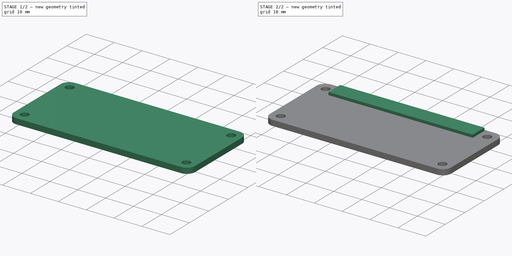
[diagram: build sequence overview — one tinted view per stage of 2, left to right]
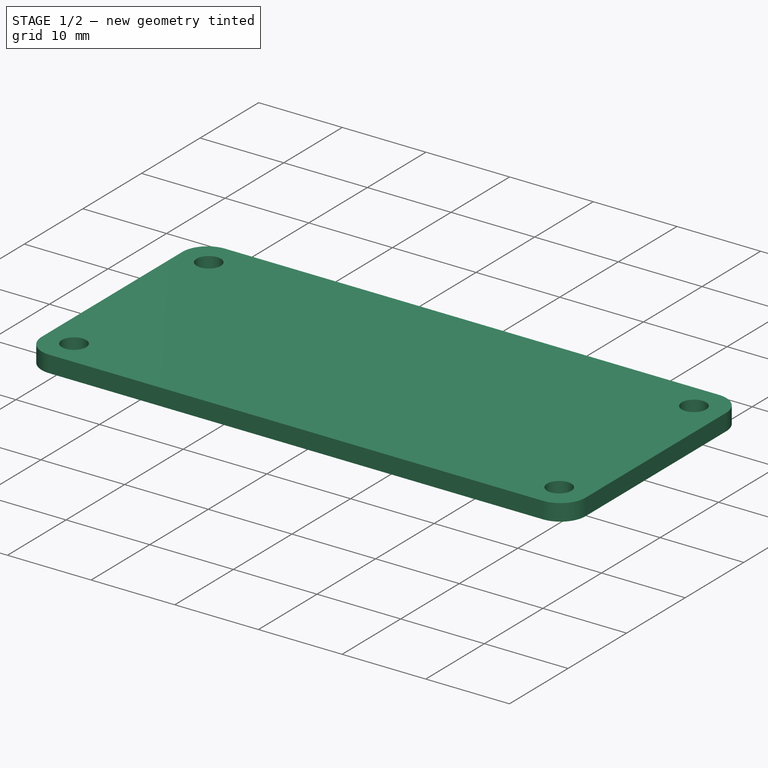
[diagram: stage 1 of 2 — iso view after this stage's code; geometry added in this stage tinted green]
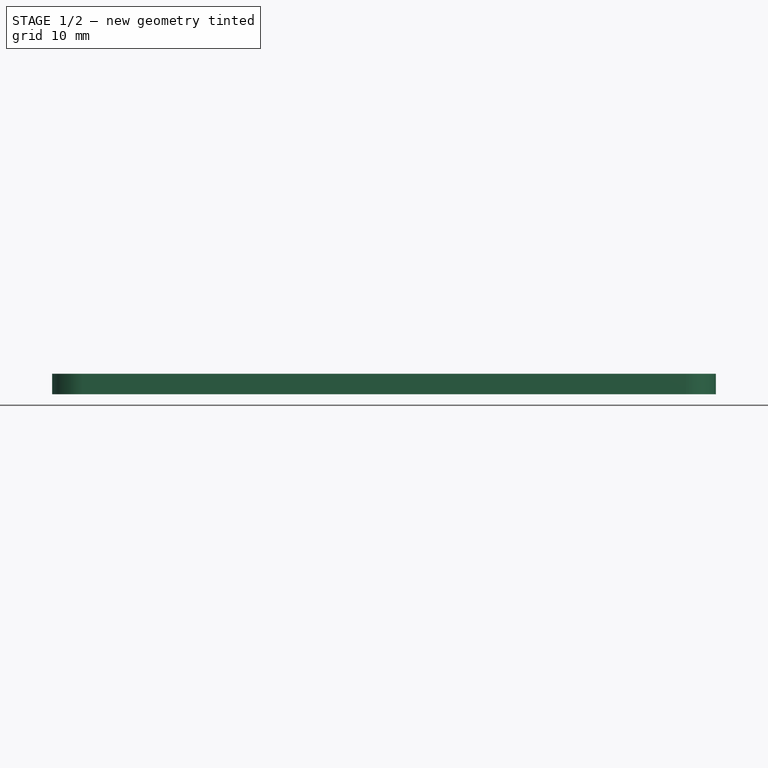
[diagram: stage 1 of 2 — front view after this stage's code; geometry added in this stage tinted green]
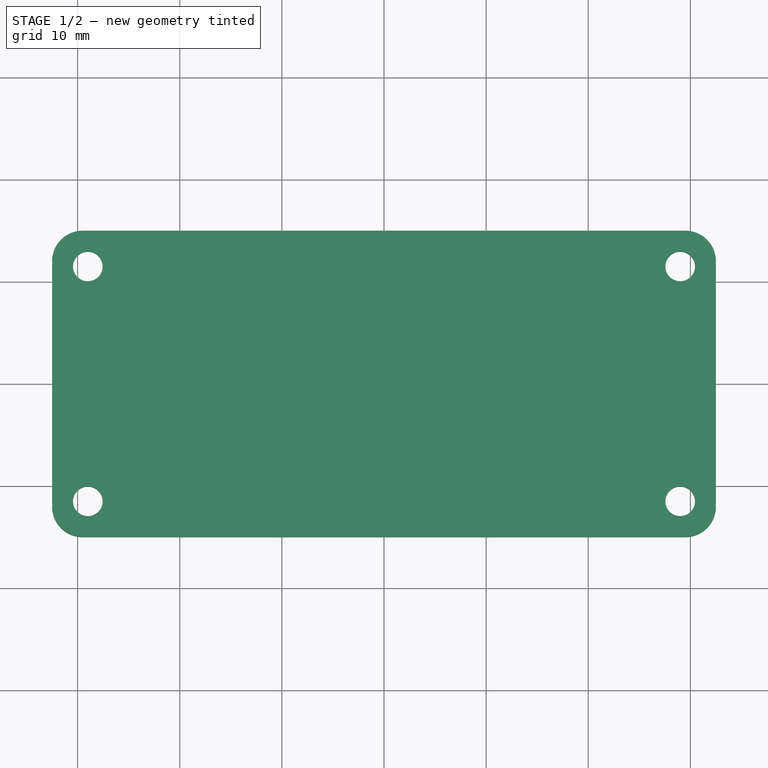
[diagram: stage 1 of 2 — top view after this stage's code; geometry added in this stage tinted green]
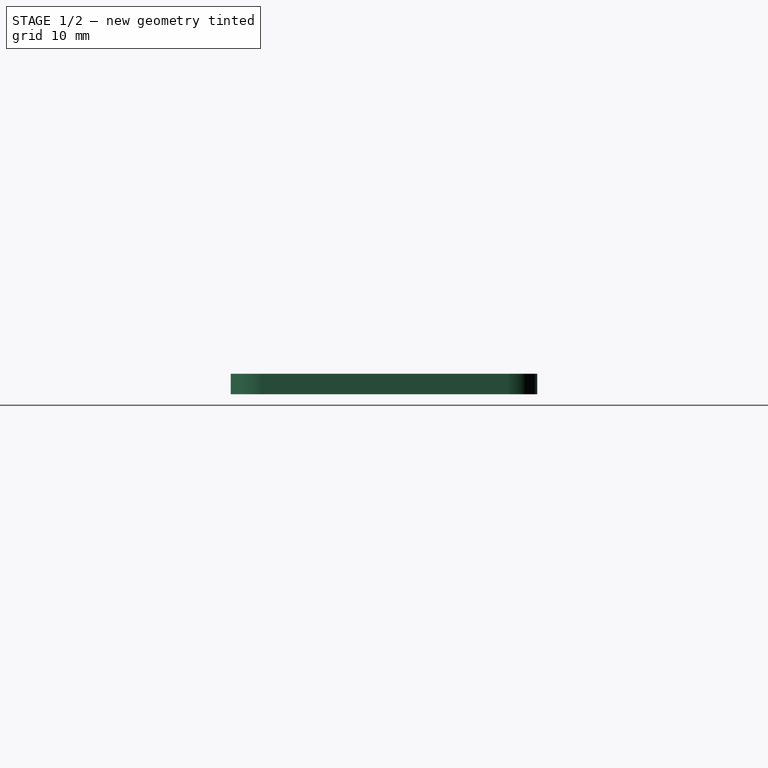
[diagram: stage 1 of 2 — right view after this stage's code; geometry added in this stage tinted green]
FCSTD DOCUMENT  (FreeCAD 0.17R13387 (Git))
Label: raspberry_zero_w_border
License: All rights reserved
LicenseURL: http://en.wikipedia.org/wiki/All_rights_reserved
objects: Sketcher::SketchObject×2, PartDesign::Pad×2, PartDesign::Body×1
note: 7 computed .brp shape members not serialized (recipe doc carries the construction recipe); baked Part::Feature solids carry a one-line shape summary decoded from their .brp

FEATURE [Sketcher::SketchObject] Sketch
  MapMode = 5
  Support = -> [XY_Plane]
  sketch-geometry (15):
    g0: LineSegment StartX=-29.5 StartY=15 StartZ=0 EndX=29.5 EndY=15 EndZ=0
    g1: LineSegment StartX=32.5 StartY=12 StartZ=0 EndX=32.5 EndY=-12 EndZ=0
    g2: LineSegment StartX=29.5 StartY=-15 StartZ=0 EndX=-29.5 EndY=-15 EndZ=0
    g3: LineSegment StartX=-32.5 StartY=-12 StartZ=0 EndX=-32.5 EndY=12 EndZ=0
    g4: ArcOfCircle CenterX=-29.5 CenterY=12 CenterZ=0 NormalX=0 NormalY=0 NormalZ=1 AngleXU=0 Radius=3 StartAngle=1.5708 EndAngle=3.14159
    g5: ArcOfCircle CenterX=29.5 CenterY=12 CenterZ=0 NormalX=0 NormalY=0 NormalZ=1 AngleXU=0 Radius=3 StartAngle=0 EndAngle=1.5708
    g6: ArcOfCircle CenterX=29.5 CenterY=-12 CenterZ=0 NormalX=0 NormalY=0 NormalZ=1 AngleXU=0 Radius=3 StartAngle=4.71239 EndAngle=6.28319
    g7: ArcOfCircle CenterX=-29.5 CenterY=-12 CenterZ=0 NormalX=0 NormalY=0 NormalZ=1 AngleXU=0 Radius=3 StartAngle=3.14159 EndAngle=4.71239
    g8: Circle CenterX=-29 CenterY=11.5 CenterZ=0 NormalX=0 NormalY=0 NormalZ=1 AngleXU=0 Radius=1.45
    g9: Circle CenterX=29 CenterY=11.5 CenterZ=0 NormalX=0 NormalY=0 NormalZ=1 AngleXU=0 Radius=1.45
    g10: Circle CenterX=-29 CenterY=-11.5 CenterZ=0 NormalX=0 NormalY=0 NormalZ=1 AngleXU=0 Radius=1.45
    g11: Circle CenterX=29 CenterY=-11.5 CenterZ=0 NormalX=0 NormalY=0 NormalZ=1 AngleXU=0 Radius=1.45
    g12: LineSegment [constr] StartX=-29 StartY=11.5 StartZ=0 EndX=-29 EndY=-11.5 EndZ=0
    g13: LineSegment [constr] StartX=-29 StartY=11.5 StartZ=0 EndX=29 EndY=11.5 EndZ=0
    g14: LineSegment [constr] StartX=29 StartY=11.5 StartZ=0 EndX=29 EndY=-11.5 EndZ=0
  constraints (36):
    c: Horizontal(g0)
    c: Vertical(g1)
    c: Vertical(g3)
    c: Tangent(g0,g4) = 1.5708
    c: Tangent(g3,g4) = 1.5708
    c: Tangent(g0,g5) = 1.5708
    c: Tangent(g1,g5) = 1.5708
    c: Tangent(g1,g6) = 1.5708
    c: Tangent(g2,g6) = 1.5708
    c: Tangent(g2,g7) = 1.5708
    c: Tangent(g3,g7) = 1.5708
    c: Radius(g7) = 3
    c: Equal(g7,g5)
    c: Equal(g7,g6)
    c: Equal(g4,g7)
    c: DistanceX(g3,g1) = 65
    c: DistanceY(g2,g0) = 30
    c: Equal(g8,g10)
    c: Equal(g10,g9)
    c: Equal(g9,g11)
    c: Radius(g8) = 1.45
    c: Symmetric(g8,g9,g-2)
    c: Symmetric(g9,g11,g-1)
    c: DistanceY(g10,g8) = 23
    c: DistanceY(g8,g0) = 3.5
    c: Coincident(g12,g8)
    c: Coincident(g12,g10)
    c: Vertical(g12)
    c: Symmetric(g0,g2,g-1)
    c: DistanceX(g3,g8) = 3.5
    c: Coincident(g13,g8)
    c: Coincident(g13,g9)
    c: DistanceX(g13,g13) = 58
    c: Coincident(g14,g9)
    c: Coincident(g14,g11)
    c: Equal(g14,g12)
FEATURE [PartDesign::Pad] Pad
  Length = 2
  Length2 = 100
  Profile = -> Sketch
  Type = 0
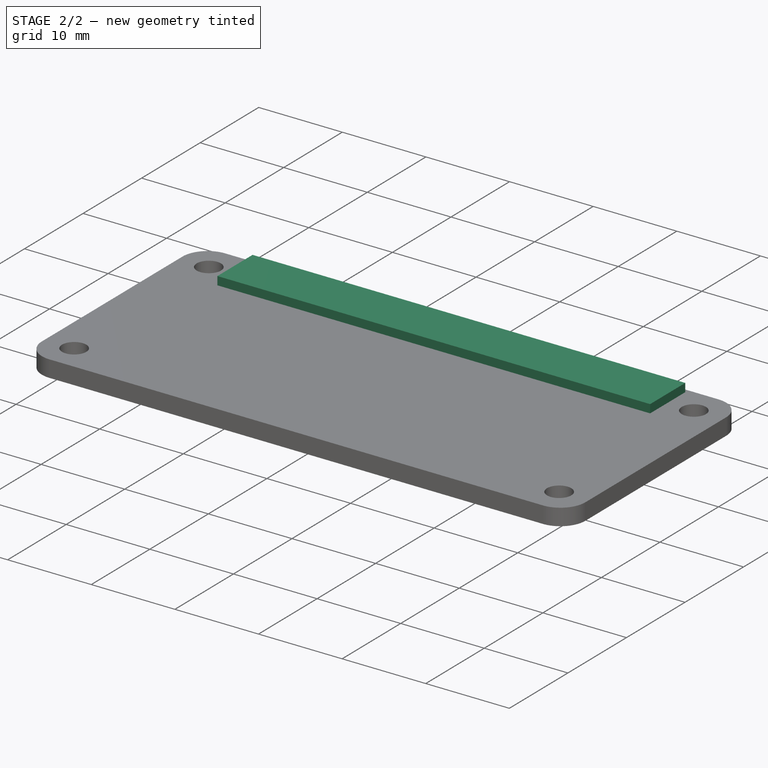
[diagram: stage 2 of 2 — iso view after this stage's code; geometry added in this stage tinted green]
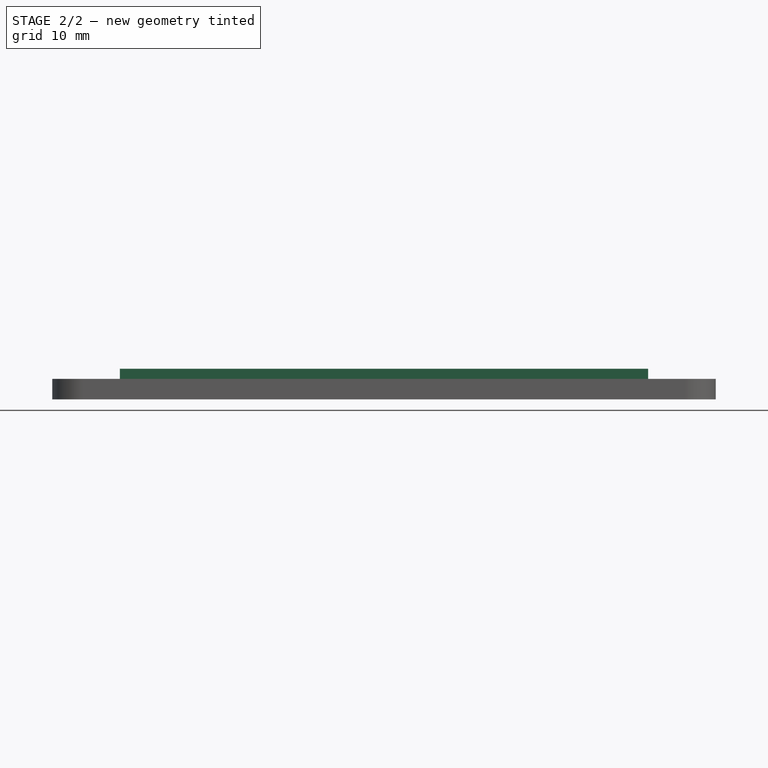
[diagram: stage 2 of 2 — front view after this stage's code; geometry added in this stage tinted green]
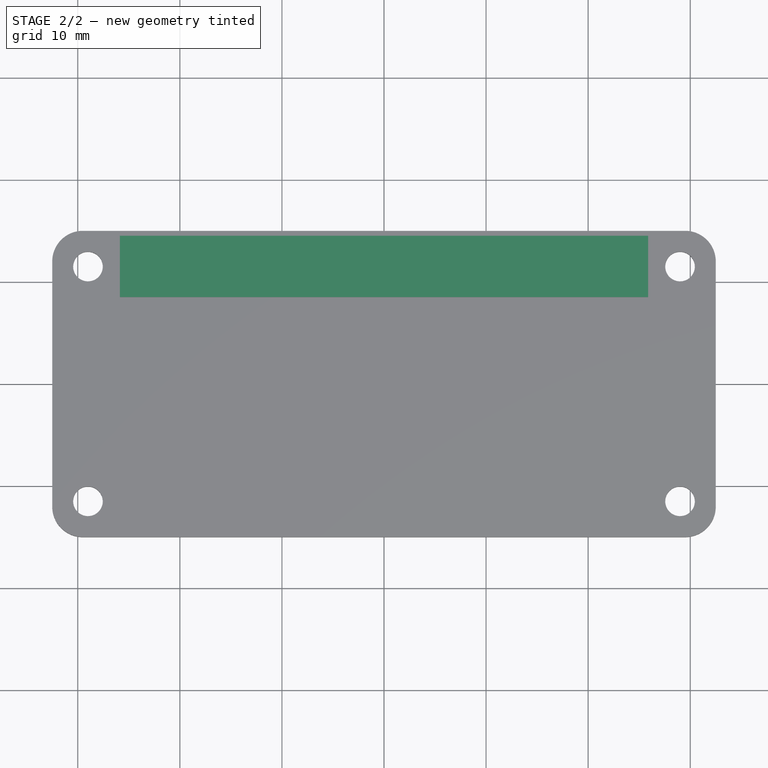
[diagram: stage 2 of 2 — top view after this stage's code; geometry added in this stage tinted green]
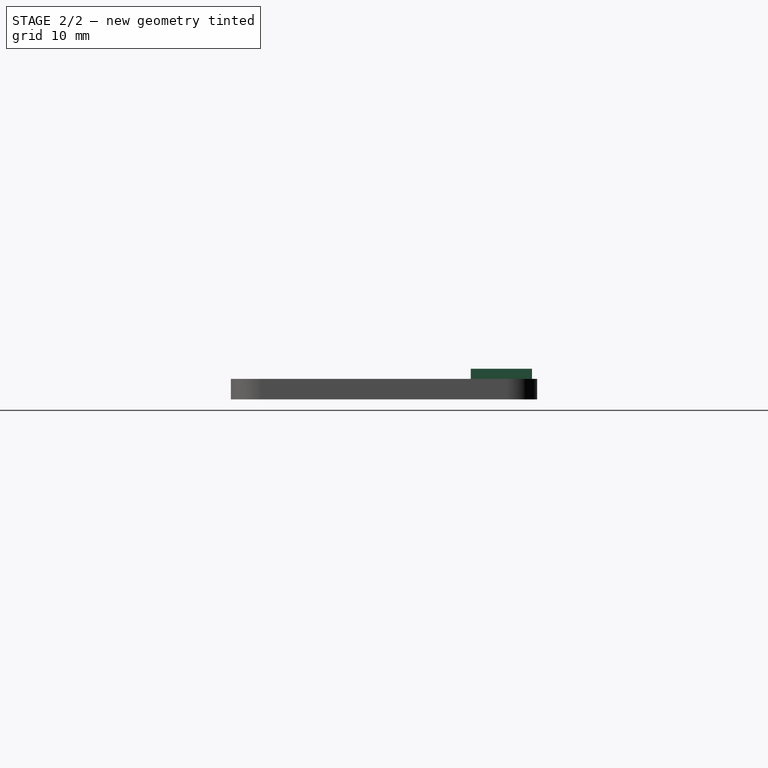
[diagram: stage 2 of 2 — right view after this stage's code; geometry added in this stage tinted green]
FEATURE [Sketcher::SketchObject] Sketch001
  ExternalGeometry = -> [Pad]
  MapMode = 5
  Placement = pos=(0,0,2) rot=(0,0,1;0rad)
  Support = -> [Pad]
  sketch-geometry (5):
    g0: LineSegment StartX=-25.875 StartY=14.5 StartZ=0 EndX=25.875 EndY=14.5 EndZ=0
    g1: LineSegment StartX=25.875 StartY=14.5 StartZ=0 EndX=25.875 EndY=8.5 EndZ=0
    g2: LineSegment StartX=25.875 StartY=8.5 StartZ=0 EndX=-25.875 EndY=8.5 EndZ=0
    g3: LineSegment StartX=-25.875 StartY=8.5 StartZ=0 EndX=-25.875 EndY=14.5 EndZ=0
    g4: LineSegment [constr] StartX=29 StartY=11.5 StartZ=0 EndX=-24.312 EndY=11.5 EndZ=0
  constraints (14):
    c: Coincident(g0,g1)
    c: Coincident(g1,g2)
    c: Coincident(g2,g3)
    c: Coincident(g3,g0)
    c: Horizontal(g0)
    c: Horizontal(g2)
    c: Vertical(g1)
    c: Vertical(g3)
    c: DistanceX(g0,g0) = 51.75
    c: DistanceY(g1,g1) = 6
    c: Symmetric(g0,g0,g-2)
    c: Coincident(g4,g-3)
    c: Horizontal(g4)
    c: Symmetric(g1,g0,g4)
FEATURE [PartDesign::Pad] Pad001
  BaseFeature = -> Pad
  Length = 1
  Length2 = 100
  Profile = -> Sketch001
  Type = 0
FEATURE [PartDesign::Body] Body
  Group = -> [Sketch,Pad,Sketch001,Pad001]
  Origin = -> Origin
  Tip = -> Pad001
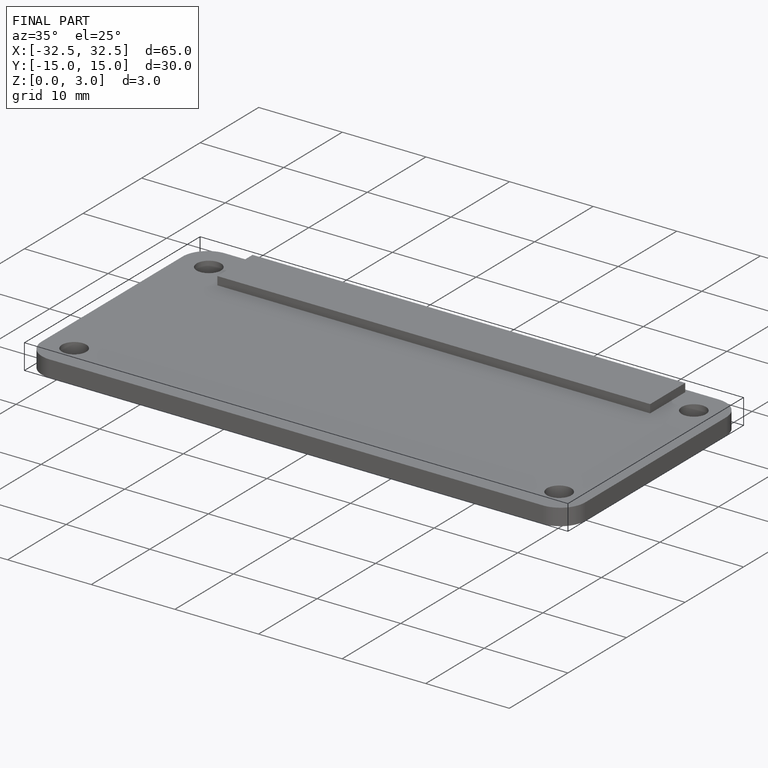
[diagram: finished part — iso view with bounding-box wireframe]
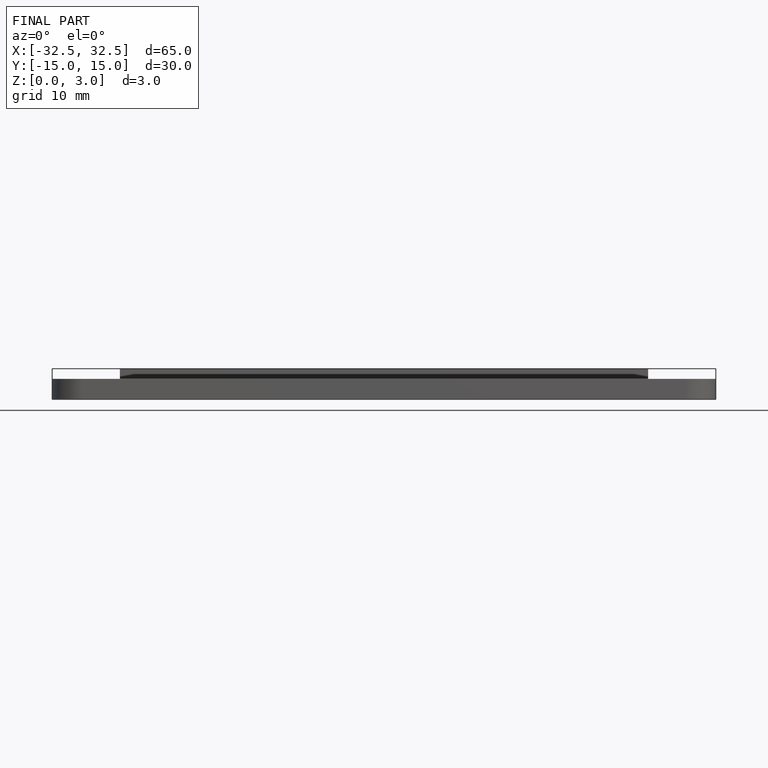
[diagram: finished part — front view with bounding-box wireframe]
